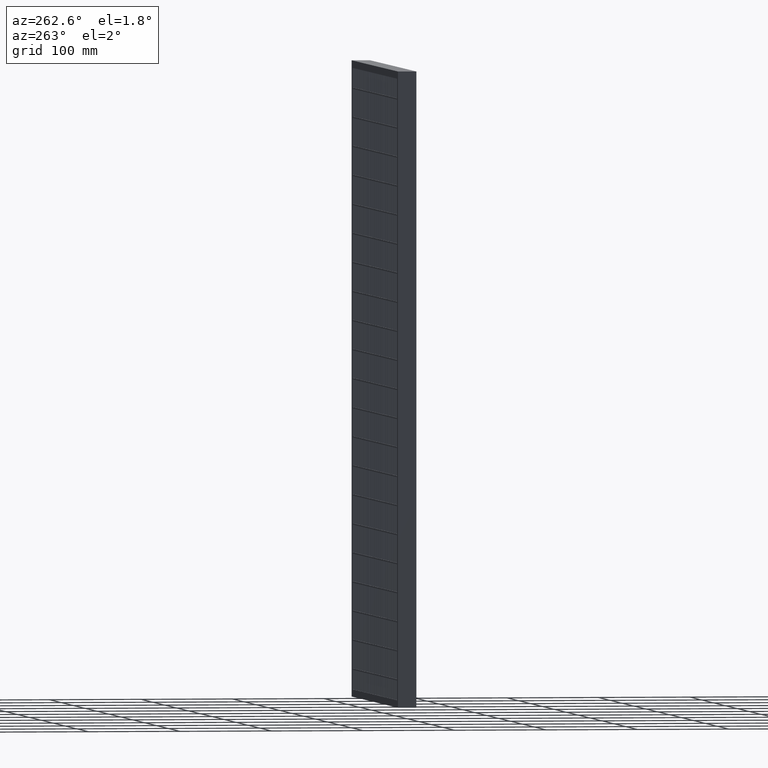
[diagram: clean part render]
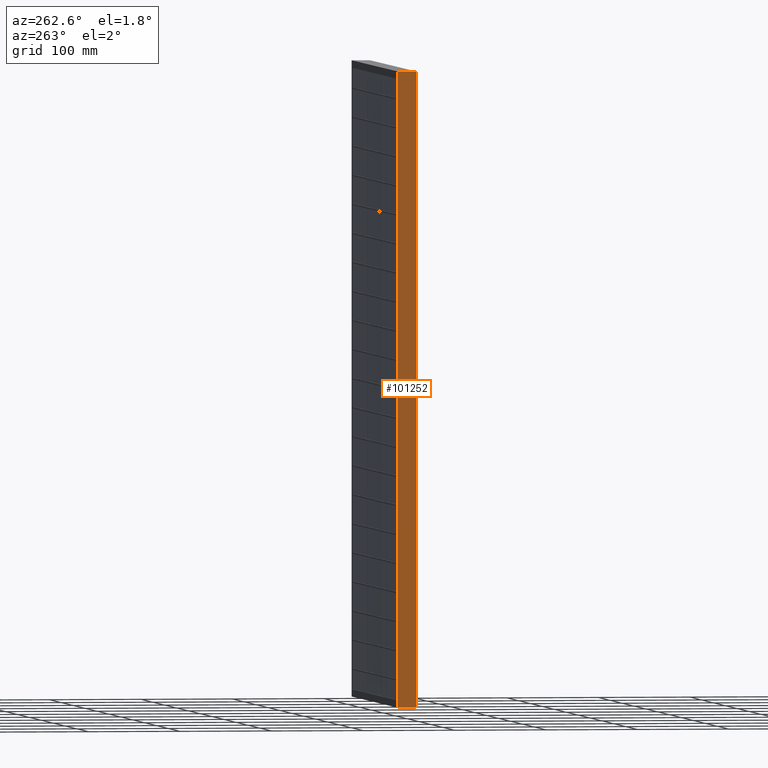
[diagram: same view with one face highlighted and labeled with its STEP entity id]
A machine part, auxiliary view. The second image highlights one B-rep face of the part: STEP entity #101252.
In plain terms, the highlighted planar face has unit normal (-1, -0, 0).
Its self-contained STEP definition (entity closure, byte-faithful):
#8796 = DIRECTION ( 'NONE',  ( -0.0000000000000000000, -0.0000000000000000000, 1.000000000000000000 ) ) ;
#9412 = DIRECTION ( 'NONE',  ( 3.061616997868382600E-016, -1.000000000000000000, 0.0000000000000000000 ) ) ;
#10207 = EDGE_CURVE ( 'NONE', #62834, #25109, #52141, .T. ) ;
#10431 = CARTESIAN_POINT ( 'NONE',  ( 1.530808498934191500E-015, -10.00000000000000000, -5.551115123125782700E-014 ) ) ;
#18033 = VECTOR ( 'NONE', #53632, 1000.000000000000000 ) ;
#19358 = VECTOR ( 'NONE', #41875, 1000.000000000000000 ) ;
#19773 = FACE_OUTER_BOUND ( 'NONE', #56921, .T. ) ;
#22219 = CARTESIAN_POINT ( 'NONE',  ( -3.061616997868382300E-015, 10.00000000000000000, -733.0813184570760100 ) ) ;
#25109 = VERTEX_POINT ( 'NONE', #97830 ) ;
#26489 = CARTESIAN_POINT ( 'NONE',  ( 3.061616997868383000E-015, -10.00000000000000000, -733.0813184570760100 ) ) ;
#28959 = CARTESIAN_POINT ( 'NONE',  ( 1.530808498934191500E-015, -10.00000000000000000, -5.551115123125782700E-014 ) ) ;
#29015 = CARTESIAN_POINT ( 'NONE',  ( -3.061616997868381900E-015, 10.00000000000000000, -690.0000000000000000 ) ) ;
#30899 = CARTESIAN_POINT ( 'NONE',  ( 3.061616997868383000E-015, -10.00000000000000000, -690.0000000000000000 ) ) ;
#32935 = PLANE ( 'NONE',  #101513 ) ;
#37509 = ORIENTED_EDGE ( 'NONE', *, *, #38856, .T. ) ;
#37756 = CARTESIAN_POINT ( 'NONE',  ( -3.061616997868386200E-015, 10.00000000000001400, -690.0000000000000000 ) ) ;
#38856 = EDGE_CURVE ( 'NONE', #89785, #25109, #101526, .T. ) ;
#41875 = DIRECTION ( 'NONE',  ( -0.0000000000000000000, -0.0000000000000000000, 1.000000000000000000 ) ) ;
#43368 = CARTESIAN_POINT ( 'NONE',  ( -1.020538999289461500E-015, 3.333333333333336600, 0.0000000000000000000 ) ) ;
#44066 = CARTESIAN_POINT ( 'NONE',  ( 1.020538999289460400E-015, -3.333333333333331300, 0.0000000000000000000 ) ) ;
#44456 = VERTEX_POINT ( 'NONE', #30899 ) ;
#50611 = LINE ( 'NONE', #26489, #87295 ) ;
#52141 = LINE ( 'NONE', #22219, #19358 ) ;
#53632 = DIRECTION ( 'NONE',  ( 3.061616997868382600E-016, -1.000000000000000000, 3.061616997868382600E-016 ) ) ;
#55821 = ORIENTED_EDGE ( 'NONE', *, *, #10207, .F. ) ;
#56921 = EDGE_LOOP ( 'NONE', ( #89182, #37509, #55821, #69389 ) ) ;
#59899 = LINE ( 'NONE', #37756, #18033 ) ;
#62834 = VERTEX_POINT ( 'NONE', #29015 ) ;
#68941 = CARTESIAN_POINT ( 'NONE',  ( -3.061616997868382300E-015, 10.00000000000000000, -733.0813184570760100 ) ) ;
#69389 = ORIENTED_EDGE ( 'NONE', *, *, #91618, .T. ) ;
#81009 = EDGE_CURVE ( 'NONE', #44456, #89785, #50611, .T. ) ;
#81981 = DIRECTION ( 'NONE',  ( -1.000000000000000000, -3.061616997868382600E-016, 0.0000000000000000000 ) ) ;
#84086 = CARTESIAN_POINT ( 'NONE',  ( -1.110223024625157800E-013, 10.00000000000000200, 1.232687704539892700E-013 ) ) ;
#87295 = VECTOR ( 'NONE', #8796, 1000.000000000000000 ) ;
#89182 = ORIENTED_EDGE ( 'NONE', *, *, #81009, .T. ) ;
#89785 = VERTEX_POINT ( 'NONE', #28959 ) ;
#91618 = EDGE_CURVE ( 'NONE', #62834, #44456, #59899, .T. ) ;
#97830 = CARTESIAN_POINT ( 'NONE',  ( -1.110223024625157800E-013, 10.00000000000000200, 1.232687704539892700E-013 ) ) ;
#101252 = ADVANCED_FACE ( 'NONE', ( #19773 ), #32935, .T. ) ;
#101513 = AXIS2_PLACEMENT_3D ( 'NONE', #68941, #81981, #9412 ) ;
#101526 = B_SPLINE_CURVE_WITH_KNOTS ( 'NONE', 3,
 ( #10431, #44066, #43368, #84086 ),
 .UNSPECIFIED., .F., .F.,
 ( 4, 4 ),
 ( 0.0000000000000000000, 1.000000000000000000 ),
 .UNSPECIFIED. ) ;